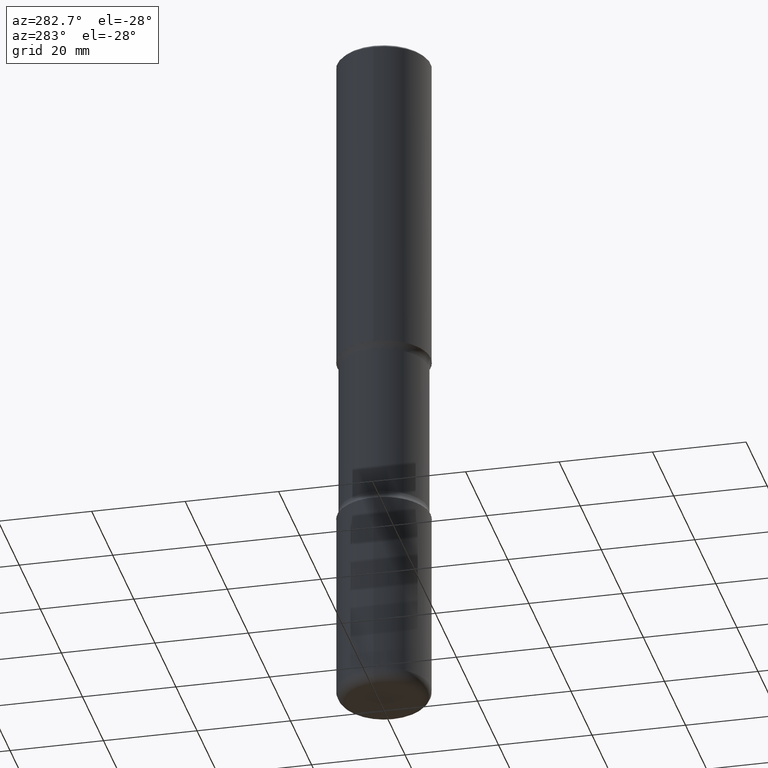
[diagram: clean part render]
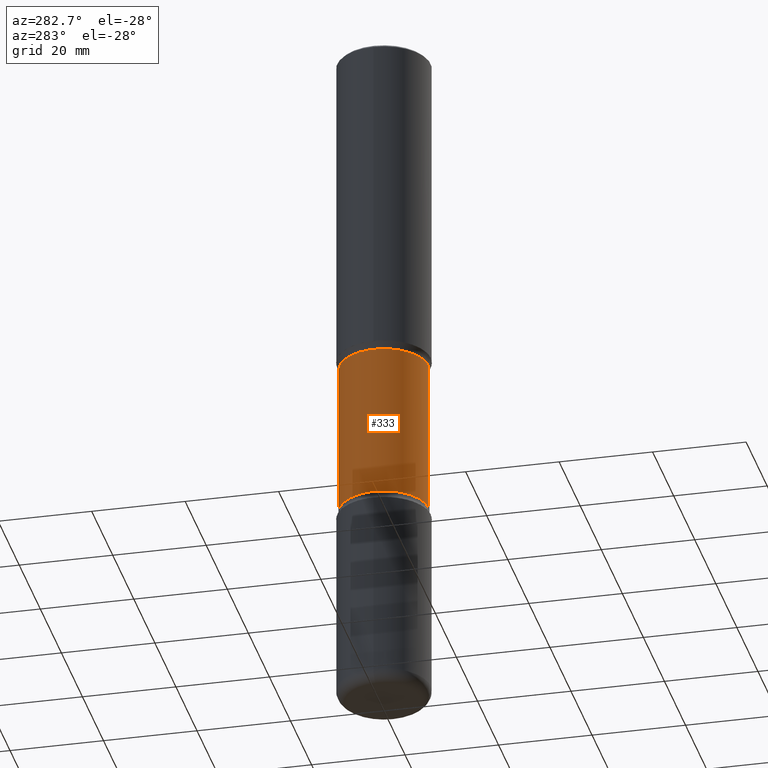
[diagram: same view with one face highlighted and labeled with its STEP entity id]
A machine part, auxiliary view. The second image highlights one B-rep face of the part: STEP entity #333.
In plain terms, the highlighted cylindrical surface (partial cylindrical patch) has radius 9.4996 mm, axis along (0, -0, -1).
Its self-contained STEP definition (entity closure, byte-faithful):
#14 = AXIS2_PLACEMENT_3D ( 'NONE', #162, #290, #469 ) ;
#18 = LINE ( 'NONE', #283, #190 ) ;
#40 = CARTESIAN_POINT ( 'NONE',  ( 1.013341980608738414E-28, -1.447825793226129018E-14, -4.145243411606583273 ) ) ;
#51 = DIRECTION ( 'NONE',  ( 6.982962677686266711E-15, 1.000000000000000000, -2.921762560068729411E-15 ) ) ;
#58 = VERTEX_POINT ( 'NONE', #404 ) ;
#85 = CARTESIAN_POINT ( 'NONE',  ( 2.611628041454766160E-15, 0.3739999999999856772, -4.145243411606584161 ) ) ;
#102 = DIRECTION ( 'NONE',  ( 2.499563752616943710E-29, -3.414014296659653741E-15, -1.000000000000000000 ) ) ;
#117 = VERTEX_POINT ( 'NONE', #85 ) ;
#142 = AXIS2_PLACEMENT_3D ( 'NONE', #40, #552, #371 ) ;
#154 = EDGE_CURVE ( 'NONE', #418, #549, #200, .T. ) ;
#162 = CARTESIAN_POINT ( 'NONE',  ( 6.829029461346524548E-29, -9.964976017815853586E-15, -2.823256588393414646 ) ) ;
#172 = CIRCLE ( 'NONE', #142, 0.3740000000000001656 ) ;
#180 = AXIS2_PLACEMENT_3D ( 'NONE', #471, #240, #51 ) ;
#190 = VECTOR ( 'NONE', #506, 39.37007874015748143 ) ;
#194 = EDGE_LOOP ( 'NONE', ( #521, #483, #294, #497 ) ) ;
#200 = CIRCLE ( 'NONE', #14, 0.3740000000000001656 ) ;
#213 = CARTESIAN_POINT ( 'NONE',  ( 2.611628041454809941E-15, 0.3739999999999796820, -5.905499999999999972 ) ) ;
#215 = EDGE_CURVE ( 'NONE', #418, #58, #18, .T. ) ;
#240 = DIRECTION ( 'NONE',  ( 2.499563752616943710E-29, -3.414014296659653741E-15, -1.000000000000000000 ) ) ;
#283 = CARTESIAN_POINT ( 'NONE',  ( -2.565826251166408560E-15, -0.3740000000000206493, -5.905499999999997307 ) ) ;
#290 = DIRECTION ( 'NONE',  ( 2.499563752616943710E-29, -3.414014296659653741E-15, -1.000000000000000000 ) ) ;
#294 = ORIENTED_EDGE ( 'NONE', *, *, #321, .T. ) ;
#321 = EDGE_CURVE ( 'NONE', #549, #117, #500, .T. ) ;
#333 = ADVANCED_FACE ( 'NONE', ( #420 ), #550, .T. ) ;
#337 = CARTESIAN_POINT ( 'NONE',  ( 2.611628041454733028E-15, 0.3739999999999901736, -2.823256588393415534 ) ) ;
#363 = VECTOR ( 'NONE', #102, 39.37007874015748143 ) ;
#364 = CARTESIAN_POINT ( 'NONE',  ( -2.633402156444536217E-15, -0.3740000000000101577, -2.823256588393413313 ) ) ;
#371 = DIRECTION ( 'NONE',  ( 6.982962677686266711E-15, 1.000000000000000000, -2.921762560068729411E-15 ) ) ;
#404 = CARTESIAN_POINT ( 'NONE',  ( -2.633402156444500718E-15, -0.3740000000000146541, -4.145243411606582384 ) ) ;
#418 = VERTEX_POINT ( 'NONE', #364 ) ;
#420 = FACE_OUTER_BOUND ( 'NONE', #194, .T. ) ;
#469 = DIRECTION ( 'NONE',  ( 6.982962677686266711E-15, 1.000000000000000000, -2.921762560068729411E-15 ) ) ;
#471 = CARTESIAN_POINT ( 'NONE',  ( 1.453329336974072664E-28, -2.048779909082575425E-14, -5.905499999999998195 ) ) ;
#483 = ORIENTED_EDGE ( 'NONE', *, *, #154, .T. ) ;
#497 = ORIENTED_EDGE ( 'NONE', *, *, #528, .F. ) ;
#500 = LINE ( 'NONE', #213, #363 ) ;
#506 = DIRECTION ( 'NONE',  ( 2.499563752616943710E-29, -3.414014296659653741E-15, -1.000000000000000000 ) ) ;
#521 = ORIENTED_EDGE ( 'NONE', *, *, #215, .F. ) ;
#528 = EDGE_CURVE ( 'NONE', #58, #117, #172, .T. ) ;
#549 = VERTEX_POINT ( 'NONE', #337 ) ;
#550 = CYLINDRICAL_SURFACE ( 'NONE', #180, 0.3740000000000001656 ) ;
#552 = DIRECTION ( 'NONE',  ( 2.499563752616943710E-29, -3.414014296659653741E-15, -1.000000000000000000 ) ) ;